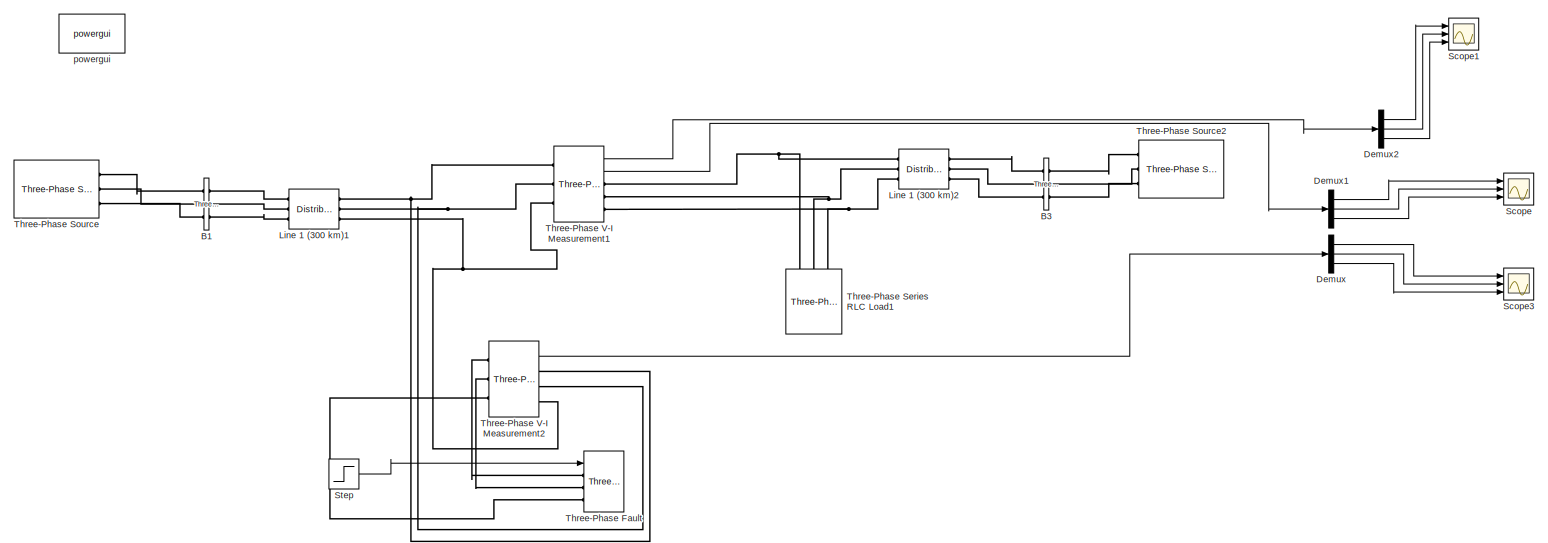
[diagram: root canvas - part 1/1, most of the canvas]
MODEL slx_c2618fd77935
KIND model
BLOCK [Reference] B1  REF=powerlib/Measurements/Three-Phase
V-I Measurement
  CurrentMeasurement = no
  Ipu = on
  LabelI = Iabc_B3
  LabelV = Vabc_B3
  OutputType = Complex
  PSBequivalent = 0
  Pbase = 100e6
  PhasorSimulation = off
  Ports = [0, 0, 0, 0, 0, 3, 3]
  SetLabelI = on
  SetLabelV = on
  SourceBlock = powerlib/Measurements/Three-Phase\nV-I Measurement
  SourceType = Three-Phase VI Measurement
  Vbase = 735e3
  VoltageMeasurement = no
  Vpu = on
  VpuLL = off
BLOCK [Reference] B3  REF=powerlib/Measurements/Three-Phase
V-I Measurement
  CurrentMeasurement = no
  Ipu = on
  LabelI = Iabc_B3
  LabelV = Vabc_B3
  OutputType = Complex
  PSBequivalent = 0
  Pbase = 100e6
  PhasorSimulation = off
  Ports = [0, 0, 0, 0, 0, 3, 3]
  SetLabelI = on
  SetLabelV = on
  SourceBlock = powerlib/Measurements/Three-Phase\nV-I Measurement
  SourceType = Three-Phase VI Measurement
  Vbase = 735e3
  VoltageMeasurement = no
  Vpu = on
  VpuLL = off
BLOCK [Demux] Demux
  DisplayOption = bar
  Outputs = 3
  Ports = [1, 3]
BLOCK [Demux] Demux1
  DisplayOption = bar
  Outputs = 3
  Ports = [1, 3]
BLOCK [Demux] Demux2
  DisplayOption = bar
  Outputs = 3
  Ports = [1, 3]
BLOCK [Reference] Line 1 (300 km)1  REF=powerlib/Elements/Distributed Parameters Line
  AttributesFormatString = \n
  Capacitance = [12.74e-9 7.751e-9]
  Frequency = 60
  I1 = ones(3,3)
  I2 = ones(3,3)
  Inductance = [0.9337e-3  4.1264e-3]
  Length = 300
  Measurements = None
  Phases = 3
  Ports = [0, 0, 0, 0, 0, 3, 3]
  Resistance = [0.01273 0.3864]
  SourceBlock = powerlib/Elements/Distributed Parameters Line
  SourceType = Distributed Parameters Line
  V1 = ones(3,3)
  V2 = ones(3,3)
  nHarmo = 1
  x1 = [-0.0017 -6.56997119575279e-12 0 0;-0.00168 -6.51126669039499e-12 0 0;-0.00166 -6.45230513137733e-12 0 0;-0.00164 -6.3930888464012e-12 0 0;-0.00162 -6.33362017322413e-12 0 0;-0.0016 -6.27390145956752e-12 0 0;-0.00158 -6.21393506302392e-12 0 0;-0.00156 -6.153723350964e-12 0 0;-0.00154 -6.09326870044304e-12 0 0;-0.00152 -6.03257349810714e-12 0 0;-0.0015 -5.97164014009896e-12 0 0;-0.00148 -5.91047103...<+4141ch>
  x2 = [-0.0017 -1.27009965658339e-11 0 0;-0.00168 -1.22299932108898e-11 0 0;-0.00166 -1.17585070367548e-11 0 0;-0.00164 -1.12865566568958e-11 0 0;-0.00162 -1.08141607031057e-11 0 0;-0.0016 -1.03413378247678e-11 0 0;-0.00158 -9.86810668811984e-12 0 0;-0.00156 -9.39448597551671e-12 0 0;-0.00154 -8.9204943846932e-12 0 0;-0.00152 -8.44615062802572e-12 0 0;-0.0015 -7.97147343179357e-12 0 0;-0.00148 -7.496481...<+4135ch>
  x3 = [-0.0017 -1.67835354440433e-13 0 0;-0.00168 -1.67689217617852e-13 0 0;-0.00166 -1.67536460712089e-13 0 0;-0.00164 -1.67377089753726e-13 0 0;-0.00162 -1.67211111034455e-13 0 0;-0.0016 -1.67038531106831e-13 0 0;-0.00158 -1.66859356784015e-13 0 0;-0.00156 -1.66673595139503e-13 0 0;-0.00154 -1.66481253506845e-13 0 0;-0.00152 -1.6628233947936e-13 0 0;-0.0015 -1.66076860909833e-13 0 0;-0.00148 -1.658648...<+4104ch>
  x4 = [-0.0017 1.35325109126658e-13 0 0;-0.00168 1.35585761578619e-13 0 0;-0.00166 1.35841061336873e-13 0 0;-0.00164 1.36090998322622e-13 0 0;-0.00162 1.36335562668783e-13 0 0;-0.0016 1.36574744720373e-13 0 0;-0.00158 1.36808535034895e-13 0 0;-0.00156 1.37036924382708e-13 0 0;-0.00154 1.37259903747391e-13 0 0;-0.00152 1.374774643261e-13 0 0;-0.0015 1.37689597529917e-13 0 0;-0.00148 1.37896294984186e-13 ...<+4106ch>
  x5 = 0.00169662470098723
BLOCK [Reference] Line 1 (300 km)2  REF=powerlib/Elements/Distributed Parameters Line
  AttributesFormatString = \n
  Capacitance = [12.74e-9 7.751e-9]
  Frequency = 60
  I1 = ones(3,3)
  I2 = ones(3,3)
  Inductance = [0.9337e-3  4.1264e-3]
  Length = 300
  Measurements = None
  Phases = 3
  Ports = [0, 0, 0, 0, 0, 3, 3]
  Resistance = [0.01273 0.3864]
  SourceBlock = powerlib/Elements/Distributed Parameters Line
  SourceType = Distributed Parameters Line
  V1 = ones(3,3)
  V2 = ones(3,3)
  nHarmo = 1
  x1 = [-0.0017 -1.27009965658339e-11 0 0;-0.00168 -1.22299932108898e-11 0 0;-0.00166 -1.17585070367548e-11 0 0;-0.00164 -1.12865566568958e-11 0 0;-0.00162 -1.08141607031057e-11 0 0;-0.0016 -1.03413378247678e-11 0 0;-0.00158 -9.86810668811984e-12 0 0;-0.00156 -9.39448597551671e-12 0 0;-0.00154 -8.9204943846932e-12 0 0;-0.00152 -8.44615062802572e-12 0 0;-0.0015 -7.97147343179357e-12 0 0;-0.00148 -7.496481...<+4135ch>
  x2 = [-0.0017 1.60861081472551e-11 0 0;-0.00168 1.61057299029315e-11 0 0;-0.00166 1.61247158319686e-11 0 0;-0.00164 1.61430651848347e-11 0 0;-0.00162 1.61607772371286e-11 0 0;-0.0016 1.61778512896089e-11 0 0;-0.00158 1.61942866682212e-11 0 0;-0.00156 1.62100827241249e-11 0 0;-0.00154 1.62252388337188e-11 0 0;-0.00152 1.62397543986655e-11 0 0;-0.0015 1.62536288459155e-11 0 0;-0.00148 1.62668616277294e-1...<+4066ch>
  x3 = [-0.0017 1.52514054497371e-13 0 0;-0.00168 1.53077761974669e-13 0 0;-0.00166 1.53635426204034e-13 0 0;-0.00164 1.54187025169839e-13 0 0;-0.00162 1.54732537095901e-13 0 0;-0.0016 1.55271940446342e-13 0 0;-0.00158 1.55805213926443e-13 0 0;-0.00156 1.5633233648348e-13 0 0;-0.00154 1.56853287307556e-13 0 0;-0.00152 1.57368045832425e-13 0 0;-0.0015 1.57876591736301e-13 0 0;-0.00148 1.58378904942664e-13...<+4103ch>
  x4 = [-0.0017 -1.81820356308168e-13 0 0;-0.00168 -1.81869623236353e-13 0 0;-0.00166 -1.81911710263224e-13 0 0;-0.00164 -1.81946615727256e-13 0 0;-0.00162 -1.81974338250442e-13 0 0;-0.0016 -1.81994876738343e-13 0 0;-0.00158 -1.82008230380137e-13 0 0;-0.00156 -1.82014398648642e-13 0 0;-0.00154 -1.82013381300348e-13 0 0;-0.00152 -1.82005178375417e-13 0 0;-0.0015 -1.81989790197686e-13 0 0;-0.00148 -1.81967...<+4105ch>
  x5 = 0.00169662470098723
BLOCK [Scope] Scope
  DataFormat = StructureWithTime
  Floating = off
  MaxDataPoints = 5000000
  NumInputPorts = 3
  Ports = [3]
  SampleTime = 0
  SaveName = ScopeData2
  ShowLegends = off
  YMax = 500~500~500
  YMin = -500~-500~-500
BLOCK [Scope] Scope1
  DataFormat = StructureWithTime
  Floating = off
  MaxDataPoints = 50000000
  NumInputPorts = 3
  Ports = [3]
  SampleTime = 0
  SaveName = cur
  SaveToWorkspace = on
  ShowLegends = off
  YMax = 150~150~150
  YMin = -150~-150~-150
  ZoomMode = yonly
BLOCK [Scope] Scope3
  DataFormat = StructureWithTime
  Floating = off
  MaxDataPoints = 50000000
  NumInputPorts = 3
  Ports = [3]
  SampleTime = 0
  SaveName = ScopeData3
  ShowLegends = off
  YMax = 400~150~150
  YMin = -400~-150~-150
  ZoomMode = yonly
BLOCK [Step] Step
  SampleTime = 0
BLOCK [Reference] Three-Phase Fault  REF=powerlib/Elements/Three-Phase Fault
  External = on
  FaultA = off
  FaultB = off
  FaultC = off
  FaultResistance = 0.001
  GroundFault = off
  GroundResistance = 0.001
  InitialStates = [0 0 0]
  Measurements = None
  Ports = [1, 0, 0, 0, 0, 3]
  SnubberCapacitance = inf
  SnubberResistance = 1e6
  SourceBlock = powerlib/Elements/Three-Phase Fault
  SourceType = Three-Phase Fault
  SwitchStatus = [1 0]
  SwitchTimes = [ 1/60 5/60]
BLOCK [Reference] Three-Phase Series RLC Load1  REF=powerlib/Elements/Three-Phase
Series RLC Load
  ActivePower = 200e6
  AttributesFormatString = \n
  CapacitivePower = 0
  Configuration = Y (grounded)
  InductivePower = 100
  LConnTagsString = A|B|C
  LoadType = constant Z
  Measurements = None
  NominalFrequency = 50
  NominalVoltage = 11e3
  Ports = [0, 0, 0, 0, 0, 3]
  SourceBlock = powerlib/Elements/Three-Phase\nSeries RLC Load
  SourceType = Three-Phase Series RLC Load
BLOCK [Reference] Three-Phase Source  REF=powerlib/Electrical
Sources/Three-Phase Source
  BaseVoltage = 11e3
  BusType = swing
  Frequency = 50
  Inductance = 16.58e-3
  InternalConnection = Yg
  PhaseAngle = 0
  Ports = [0, 0, 0, 0, 0, 0, 3]
  Pref = 0
  Qmax = inf
  Qmin = -inf
  Qref = 0
  Resistance = 0.8929
  ShortCircuitLevel = 500e6
  SourceBlock = powerlib/Electrical\nSources/Three-Phase Source
  SourceType = Three-Phase Source
  SpecifyImpedance = on
  Voltage = 11e3
  XRratio = 7
BLOCK [Reference] Three-Phase Source2  REF=powerlib/Electrical
Sources/Three-Phase Source
  BaseVoltage = 11e3
  BusType = swing
  Frequency = 50
  Inductance = 16.58e-3
  InternalConnection = Yg
  PhaseAngle = 0
  Ports = [0, 0, 0, 0, 0, 0, 3]
  Pref = 0
  Qmax = inf
  Qmin = -inf
  Qref = 0
  Resistance = 0.8929
  ShortCircuitLevel = 500e6
  SourceBlock = powerlib/Electrical\nSources/Three-Phase Source
  SourceType = Three-Phase Source
  SpecifyImpedance = on
  Voltage = 11e3
  XRratio = 7
BLOCK [Reference] Three-Phase V-I Measurement1  REF=powerlib/Measurements/Three-Phase
V-I Measurement
  CurrentMeasurement = yes
  Ipu = off
  LabelI = Iabc
  LabelV = Vabc
  OutputType = Complex
  PSBequivalent = 0
  Pbase = 100e6
  PhasorSimulation = off
  Ports = [0, 2, 0, 0, 0, 3, 3]
  SetLabelI = off
  SetLabelV = off
  SourceBlock = powerlib/Measurements/Three-Phase\nV-I Measurement
  SourceType = Three-Phase VI Measurement
  Vbase = 500e3
  VoltageMeasurement = phase-to-ground
  Vpu = off
  VpuLL = off
BLOCK [Reference] Three-Phase V-I Measurement2  REF=powerlib/Measurements/Three-Phase
V-I Measurement
  CurrentMeasurement = yes
  Ipu = off
  LabelI = Iabc
  LabelV = Vabc
  OutputType = Complex
  PSBequivalent = 0
  Pbase = 100e6
  PhasorSimulation = off
  Ports = [0, 1, 0, 0, 0, 3, 3]
  SetLabelI = off
  SetLabelV = off
  SourceBlock = powerlib/Measurements/Three-Phase\nV-I Measurement
  SourceType = Three-Phase VI Measurement
  Vbase = 500e3
  VoltageMeasurement = no
  Vpu = off
  VpuLL = off
BLOCK [Reference] powergui  REF=powerlib/powergui
  DisableRonSwitches = off
  DisableSnubberDevices = off
  DisableVfSwitches = off
  DisplayEquations = off
  DisplayStyle = 1
  EnableUseOfTLC = off
  ErrMax = 1e-4
  Frange = [0:2:500]
  FreqAxis = off
  FunctionMessages = off
  HookPort = off
  Interpol = off
  Iterations = 50
  MaxFrequency = 1000
  Pbase = 100e6
  Ports = []
  Priority = 1
  ResistiveCurrentMeasurement = off
  RestoreLinks = warning
  RmsSteady = 1
  SPID = off
  SampleTime = 20e-6
  ShowGrid = off
  SolverType = Tustin
  SourceBlock = powerlib/powergui
  SourceType = PSB option menu block
  StartTime = 0.0
  SwTol = 0
  Ts = 0
  UnitsV = kV
  UnitsW = MW
  UserDataPersistent = on
  Xlog = on
  Ylog = off
  ZoomFFT = off
  cycles = 1
  display = off
  echomessages = off
  frequency = 60
  frequencyindice = 50
  frequencyindicesteady = 1
  fundamental = 60
  methode = off
  save = off
  structure = 0
  variable = ZData
  x0status = blocks
LINE Demux1:1 -> Scope:1
LINE Demux1:2 -> Scope:2
LINE Demux1:3 -> Scope:3
LINE Demux2:1 -> Scope1:1
LINE Demux2:2 -> Scope1:2
LINE Demux2:3 -> Scope1:3
LINE Demux:1 -> Scope3:1
LINE Demux:2 -> Scope3:2
LINE Demux:3 -> Scope3:3
LINE Step:1 -> Three-Phase Fault:1
LINE Three-Phase V-I Measurement1:1 -> Demux2:1
LINE Three-Phase V-I Measurement1:2 -> Demux1:1
LINE Three-Phase V-I Measurement2:1 -> Demux:1
PLINE B1:LConn1 -- Three-Phase Source:RConn1
PLINE B1:LConn2 -- Three-Phase Source:RConn2
PLINE B1:LConn3 -- Three-Phase Source:RConn3
PLINE B1:RConn1 -- Line 1 (300 km)1:LConn1
PLINE B1:RConn2 -- Line 1 (300 km)1:LConn2
PLINE B1:RConn3 -- Line 1 (300 km)1:LConn3
PLINE B3:LConn1 -- Line 1 (300 km)2:RConn1
PLINE B3:LConn2 -- Line 1 (300 km)2:RConn2
PLINE B3:LConn3 -- Line 1 (300 km)2:RConn3
PLINE B3:RConn1 -- Three-Phase Source2:RConn1
PLINE B3:RConn2 -- Three-Phase Source2:RConn2
PLINE B3:RConn3 -- Three-Phase Source2:RConn3
PNET net1: Line 1 (300 km)1:RConn1 -- Three-Phase V-I Measurement1:LConn1 -- Three-Phase V-I Measurement2:RConn1
PNET net2: Line 1 (300 km)1:RConn2 -- Three-Phase V-I Measurement1:LConn2 -- Three-Phase V-I Measurement2:RConn2
PNET net3: Line 1 (300 km)1:RConn3 -- Three-Phase V-I Measurement1:LConn3 -- Three-Phase V-I Measurement2:RConn3
PNET net4: Line 1 (300 km)2:LConn1 -- Three-Phase Series RLC Load1:LConn1 -- Three-Phase V-I Measurement1:RConn1
PNET net5: Line 1 (300 km)2:LConn2 -- Three-Phase Series RLC Load1:LConn2 -- Three-Phase V-I Measurement1:RConn2
PNET net6: Line 1 (300 km)2:LConn3 -- Three-Phase Series RLC Load1:LConn3 -- Three-Phase V-I Measurement1:RConn3
PLINE Three-Phase Fault:LConn1 -- Three-Phase V-I Measurement2:LConn1
PLINE Three-Phase Fault:LConn2 -- Three-Phase V-I Measurement2:LConn2
PLINE Three-Phase Fault:LConn3 -- Three-Phase V-I Measurement2:LConn3
note: PNET lines group multi-terminal physical nets as a canonical sorted terminal list (undirected conserving connections); 2-terminal nets keep the pairwise PLINE form
